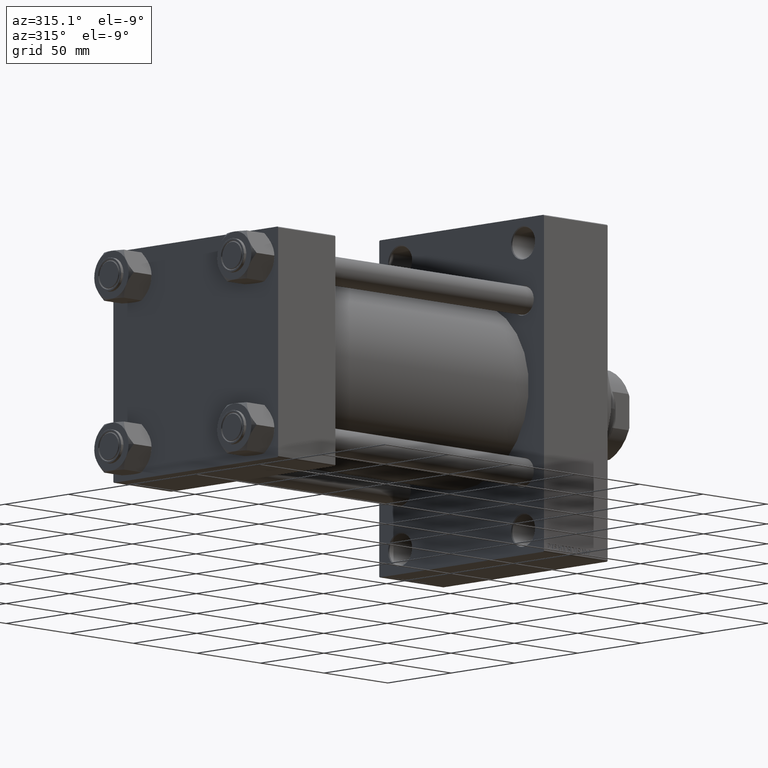
[diagram: clean part render]
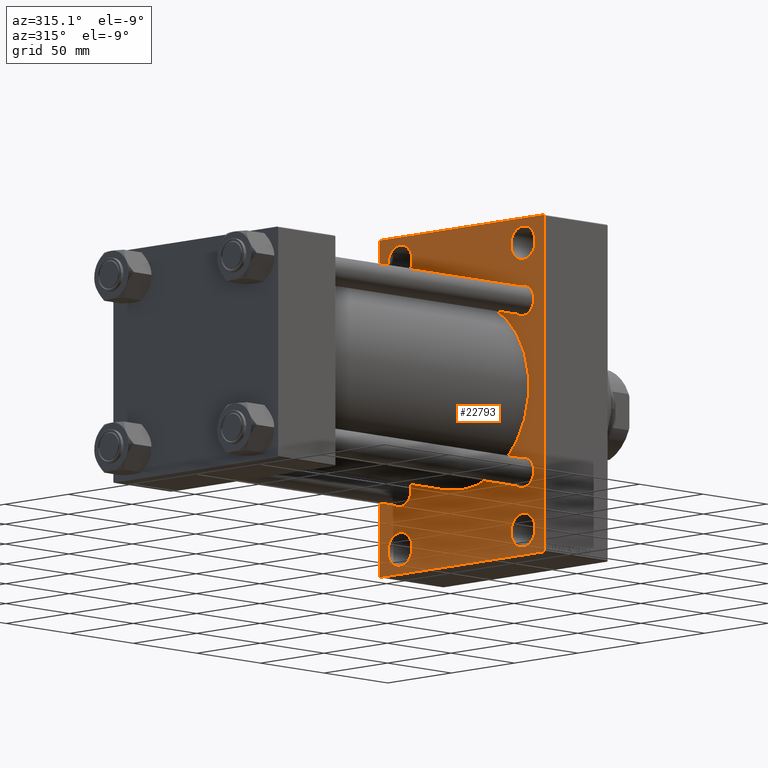
[diagram: same view with one face highlighted and labeled with its STEP entity id]
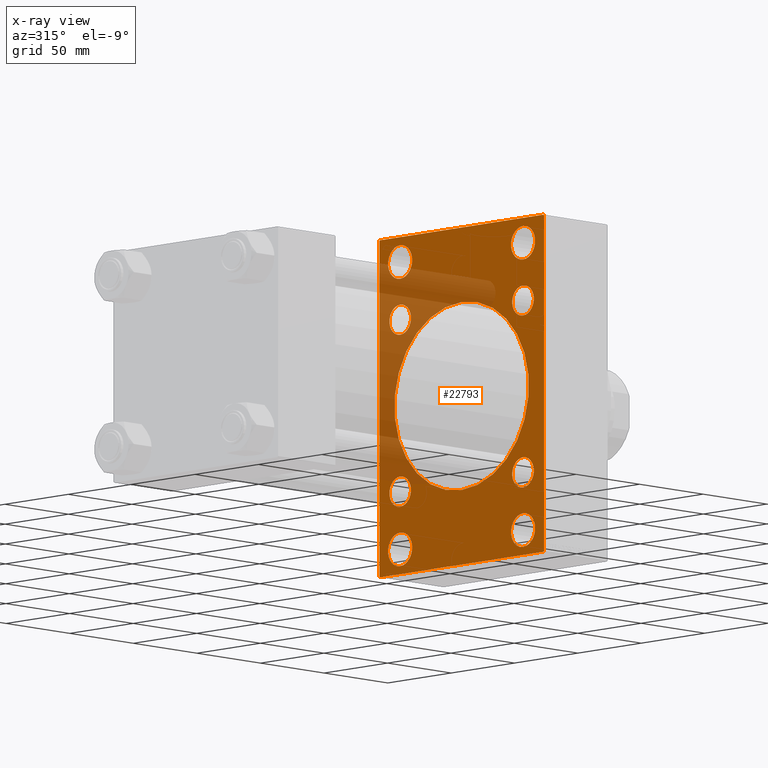
[diagram: x-ray of the same camera — body ghosted, the highlighted face saturated]
A machine part, auxiliary view. The second image highlights one B-rep face of the part: STEP entity #22793.
The next image is the same camera in x-ray: the body ghosted, the highlighted face saturated — about 25% of this face is hidden behind the body in this view.
In plain terms, the highlighted planar face has unit normal (-1, 0, 0).
Its self-contained STEP definition (entity closure, byte-faithful):
#115 = EDGE_CURVE ( 'NONE', #39630, #43888, #39712, .T. ) ;
#434 = AXIS2_PLACEMENT_3D ( 'NONE', #36726, #14760, #3663 ) ;
#561 = ORIENTED_EDGE ( 'NONE', *, *, #32945, .T. ) ;
#931 = CARTESIAN_POINT ( 'NONE',  ( 209.0000000000000284, -64.49999999999995737, -95.00000000000002842 ) ) ;
#1019 = CARTESIAN_POINT ( 'NONE',  ( 209.0000000000000284, 48.50000000000000711, 81.00000000000000000 ) ) ;
#1139 = EDGE_CURVE ( 'NONE', #39371, #47398, #39631, .T. ) ;
#1448 = ORIENTED_EDGE ( 'NONE', *, *, #38238, .T. ) ;
#1494 = DIRECTION ( 'NONE',  ( -0.000000000000000000, 0.7071067811865378028, 0.7071067811865573427 ) ) ;
#1671 = CARTESIAN_POINT ( 'NONE',  ( 209.0000000000000284, -48.44999999999999574, 56.95000000000003837 ) ) ;
#1690 = DIRECTION ( 'NONE',  ( 0.000000000000000000, 0.000000000000000000, 1.000000000000000000 ) ) ;
#1795 = VERTEX_POINT ( 'NONE', #28942 ) ;
#1901 = CARTESIAN_POINT ( 'NONE',  ( 209.0000000000000284, 48.45000000000000995, 56.95000000000002416 ) ) ;
#2238 = EDGE_CURVE ( 'NONE', #16831, #29782, #13147, .T. ) ;
#2805 = CARTESIAN_POINT ( 'NONE',  ( 209.0000000000000284, -64.50000000000002842, 94.99999999999997158 ) ) ;
#2992 = EDGE_CURVE ( 'NONE', #42486, #31927, #15037, .T. ) ;
#3102 = EDGE_LOOP ( 'NONE', ( #16718, #44909 ) ) ;
#3168 = VERTEX_POINT ( 'NONE', #6151 ) ;
#3248 = CARTESIAN_POINT ( 'NONE',  ( 209.0000000000000284, 64.99999999999997158, 94.99999999999997158 ) ) ;
#3273 = CARTESIAN_POINT ( 'NONE',  ( 209.0000000000000284, 48.45000000000000995, 48.45000000000001705 ) ) ;
#3405 = CIRCLE ( 'NONE', #30404, 9.499999999999980460 ) ;
#3406 = DIRECTION ( 'NONE',  ( 0.000000000000000000, 0.000000000000000000, 1.000000000000000000 ) ) ;
#3543 = CIRCLE ( 'NONE', #45198, 8.500000000000007105 ) ;
#3663 = DIRECTION ( 'NONE',  ( 0.000000000000000000, 0.000000000000000000, 1.000000000000000000 ) ) ;
#3935 = VERTEX_POINT ( 'NONE', #24044 ) ;
#4005 = ORIENTED_EDGE ( 'NONE', *, *, #47397, .T. ) ;
#4055 = EDGE_LOOP ( 'NONE', ( #9227, #18353 ) ) ;
#4217 = EDGE_CURVE ( 'NONE', #47398, #39371, #43610, .T. ) ;
#4234 = AXIS2_PLACEMENT_3D ( 'NONE', #41973, #12286, #27013 ) ;
#4263 = DIRECTION ( 'NONE',  ( 0.000000000000000000, 0.000000000000000000, 1.000000000000000000 ) ) ;
#4383 = LINE ( 'NONE', #18159, #5642 ) ;
#4521 = EDGE_CURVE ( 'NONE', #28708, #34101, #38173, .T. ) ;
#4971 = DIRECTION ( 'NONE',  ( 1.000000000000000000, -0.000000000000000000, 0.000000000000000000 ) ) ;
#5077 = DIRECTION ( 'NONE',  ( 1.000000000000000000, -0.000000000000000000, 0.000000000000000000 ) ) ;
#5116 = EDGE_LOOP ( 'NONE', ( #561, #8049 ) ) ;
#5297 = ORIENTED_EDGE ( 'NONE', *, *, #29708, .T. ) ;
#5642 = VECTOR ( 'NONE', #37451, 1000.000000000000114 ) ;
#5682 = CIRCLE ( 'NONE', #44252, 9.499999999999980460 ) ;
#5879 = EDGE_CURVE ( 'NONE', #11767, #34101, #13736, .T. ) ;
#5905 = DIRECTION ( 'NONE',  ( -0.000000000000000000, -0.7071067811865574537, -0.7071067811865376918 ) ) ;
#6151 = CARTESIAN_POINT ( 'NONE',  ( 209.0000000000000284, -48.50000000000000000, 90.49999999999998579 ) ) ;
#6466 = DIRECTION ( 'NONE',  ( 1.000000000000000000, 0.000000000000000000, 0.000000000000000000 ) ) ;
#7138 = ORIENTED_EDGE ( 'NONE', *, *, #46756, .T. ) ;
#7236 = ORIENTED_EDGE ( 'NONE', *, *, #29471, .T. ) ;
#7327 = AXIS2_PLACEMENT_3D ( 'NONE', #7465, #21730, #34392 ) ;
#7359 = CARTESIAN_POINT ( 'NONE',  ( 209.0000000000000284, 79.74999999999997158, 79.74999999999997158 ) ) ;
#7465 = CARTESIAN_POINT ( 'NONE',  ( 209.0000000000000284, 48.45000000000000995, -48.45000000000001705 ) ) ;
#7708 = DIRECTION ( 'NONE',  ( 0.000000000000000000, 0.000000000000000000, 1.000000000000000000 ) ) ;
#7769 = DIRECTION ( 'NONE',  ( 1.000000000000000000, -0.000000000000000000, 0.000000000000000000 ) ) ;
#8049 = ORIENTED_EDGE ( 'NONE', *, *, #32893, .T. ) ;
#8131 = DIRECTION ( 'NONE',  ( 0.000000000000000000, 0.000000000000000000, 1.000000000000000000 ) ) ;
#8277 = ORIENTED_EDGE ( 'NONE', *, *, #14753, .T. ) ;
#8572 = CARTESIAN_POINT ( 'NONE',  ( 209.0000000000000284, -48.49999999999999289, -81.00000000000001421 ) ) ;
#8768 = CARTESIAN_POINT ( 'NONE',  ( 209.0000000000000284, -48.44999999999999574, -48.45000000000003126 ) ) ;
#8967 = CARTESIAN_POINT ( 'NONE',  ( 209.0000000000000284, 48.45000000000000995, -39.95000000000000284 ) ) ;
#9219 = CARTESIAN_POINT ( 'NONE',  ( 209.0000000000000284, 64.49999999999997158, 94.99999999999997158 ) ) ;
#9227 = ORIENTED_EDGE ( 'NONE', *, *, #30990, .T. ) ;
#9273 = LINE ( 'NONE', #24019, #44678 ) ;
#9981 = FACE_BOUND ( 'NONE', #30776, .T. ) ;
#10482 = LINE ( 'NONE', #47184, #34997 ) ;
#10542 = VERTEX_POINT ( 'NONE', #37767 ) ;
#11180 = AXIS2_PLACEMENT_3D ( 'NONE', #8768, #32762, #37741 ) ;
#11507 = CARTESIAN_POINT ( 'NONE',  ( 209.0000000000000284, -48.50000000000000000, 71.50000000000002842 ) ) ;
#11767 = VERTEX_POINT ( 'NONE', #9219 ) ;
#12164 = EDGE_LOOP ( 'NONE', ( #25858, #35312 ) ) ;
#12286 = DIRECTION ( 'NONE',  ( 1.000000000000000000, 0.000000000000000000, 0.000000000000000000 ) ) ;
#12458 = CARTESIAN_POINT ( 'NONE',  ( 209.0000000000000284, 48.50000000000000711, -81.00000000000001421 ) ) ;
#12857 = CARTESIAN_POINT ( 'NONE',  ( 209.0000000000000284, -48.49999999999999289, -81.00000000000001421 ) ) ;
#12946 = CARTESIAN_POINT ( 'NONE',  ( 209.0000000000000284, -48.49999999999999289, -71.50000000000004263 ) ) ;
#13147 = LINE ( 'NONE', #38971, #15768 ) ;
#13324 = DIRECTION ( 'NONE',  ( 0.000000000000000000, 0.000000000000000000, 1.000000000000000000 ) ) ;
#13527 = EDGE_CURVE ( 'NONE', #29508, #3168, #14519, .T. ) ;
#13613 = FACE_BOUND ( 'NONE', #5116, .T. ) ;
#13736 = LINE ( 'NONE', #46826, #46729 ) ;
#13826 = CARTESIAN_POINT ( 'NONE',  ( 209.0000000000000284, 48.45000000000000995, 39.95000000000000284 ) ) ;
#14047 = EDGE_CURVE ( 'NONE', #11767, #47495, #25971, .T. ) ;
#14199 = AXIS2_PLACEMENT_3D ( 'NONE', #47630, #47156, #36743 ) ;
#14519 = CIRCLE ( 'NONE', #41506, 9.499999999999980460 ) ;
#14552 = FACE_BOUND ( 'NONE', #45912, .T. ) ;
#14714 = DIRECTION ( 'NONE',  ( 0.000000000000000000, 0.000000000000000000, 1.000000000000000000 ) ) ;
#14753 = EDGE_CURVE ( 'NONE', #30554, #41683, #34613, .T. ) ;
#14760 = DIRECTION ( 'NONE',  ( 1.000000000000000000, -0.000000000000000000, 0.000000000000000000 ) ) ;
#14774 = CARTESIAN_POINT ( 'NONE',  ( 209.0000000000000284, 48.45000000000000995, 48.45000000000001705 ) ) ;
#14967 = EDGE_CURVE ( 'NONE', #28708, #22962, #9273, .T. ) ;
#15037 = CIRCLE ( 'NONE', #42778, 9.499999999999980460 ) ;
#15768 = VECTOR ( 'NONE', #5905, 999.9999999999998863 ) ;
#16240 = CARTESIAN_POINT ( 'NONE',  ( 209.0000000000000284, 64.99999999999997158, 94.49999999999997158 ) ) ;
#16718 = ORIENTED_EDGE ( 'NONE', *, *, #115, .T. ) ;
#16831 = VERTEX_POINT ( 'NONE', #44879 ) ;
#16897 = VECTOR ( 'NONE', #37760, 1000.000000000000114 ) ;
#17181 = DIRECTION ( 'NONE',  ( 1.000000000000000000, -0.000000000000000000, 0.000000000000000000 ) ) ;
#17284 = AXIS2_PLACEMENT_3D ( 'NONE', #44104, #44355, #8131 ) ;
#18119 = CIRCLE ( 'NONE', #31223, 8.500000000000007105 ) ;
#18159 = CARTESIAN_POINT ( 'NONE',  ( 209.0000000000000284, -79.74999999999998579, -79.74999999999998579 ) ) ;
#18353 = ORIENTED_EDGE ( 'NONE', *, *, #13527, .T. ) ;
#19400 = AXIS2_PLACEMENT_3D ( 'NONE', #12857, #17181, #13324 ) ;
#19653 = CARTESIAN_POINT ( 'NONE',  ( 209.0000000000000284, 48.50000000000000711, -90.50000000000000000 ) ) ;
#20206 = AXIS2_PLACEMENT_3D ( 'NONE', #28734, #32829, #14714 ) ;
#20730 = DIRECTION ( 'NONE',  ( 0.000000000000000000, 0.000000000000000000, -1.000000000000000000 ) ) ;
#21030 = CARTESIAN_POINT ( 'NONE',  ( 209.0000000000000284, 48.50000000000000711, 71.50000000000002842 ) ) ;
#21268 = CARTESIAN_POINT ( 'NONE',  ( 209.0000000000000284, 48.45000000000000995, -48.45000000000001705 ) ) ;
#21346 = FACE_BOUND ( 'NONE', #36072, .T. ) ;
#21730 = DIRECTION ( 'NONE',  ( 1.000000000000000000, -0.000000000000000000, 0.000000000000000000 ) ) ;
#21957 = EDGE_CURVE ( 'NONE', #33628, #3935, #28577, .T. ) ;
#22008 = DIRECTION ( 'NONE',  ( 1.000000000000000000, -0.000000000000000000, 0.000000000000000000 ) ) ;
#22051 = CARTESIAN_POINT ( 'NONE',  ( 209.0000000000000284, 0.000000000000000000, 0.000000000000000000 ) ) ;
#22793 = ADVANCED_FACE ( 'NONE', ( #40130, #21346, #43296, #9981, #14552, #46933, #43769, #43061, #13613, #29277 ), #36043, .T. ) ;
#22962 = VERTEX_POINT ( 'NONE', #42697 ) ;
#23096 = VERTEX_POINT ( 'NONE', #41455 ) ;
#23199 = ORIENTED_EDGE ( 'NONE', *, *, #4217, .T. ) ;
#23913 = CARTESIAN_POINT ( 'NONE',  ( 209.0000000000000284, -48.44999999999999574, -48.45000000000003126 ) ) ;
#24019 = CARTESIAN_POINT ( 'NONE',  ( 209.0000000000000284, -65.00000000000001421, 94.99999999999997158 ) ) ;
#24044 = CARTESIAN_POINT ( 'NONE',  ( 209.0000000000000284, 48.50000000000000711, 90.49999999999998579 ) ) ;
#24383 = EDGE_CURVE ( 'NONE', #31927, #42486, #40203, .T. ) ;
#24745 = EDGE_CURVE ( 'NONE', #43888, #39630, #44851, .T. ) ;
#24967 = VERTEX_POINT ( 'NONE', #931 ) ;
#24998 = DIRECTION ( 'NONE',  ( 0.000000000000000000, 7.304098846218135653E-17, -1.000000000000000000 ) ) ;
#25858 = ORIENTED_EDGE ( 'NONE', *, *, #32789, .T. ) ;
#25971 = LINE ( 'NONE', #7359, #16897 ) ;
#27013 = DIRECTION ( 'NONE',  ( 0.000000000000000000, 0.000000000000000000, -1.000000000000000000 ) ) ;
#27297 = CIRCLE ( 'NONE', #14199, 9.499999999999980460 ) ;
#28078 = AXIS2_PLACEMENT_3D ( 'NONE', #40326, #22008, #3406 ) ;
#28161 = CIRCLE ( 'NONE', #4234, 53.00000000000000711 ) ;
#28464 = DIRECTION ( 'NONE',  ( 0.000000000000000000, -1.000000000000000000, 0.000000000000000000 ) ) ;
#28504 = CARTESIAN_POINT ( 'NONE',  ( 209.0000000000000284, -2.602085213965210642E-15, 53.00000000000000711 ) ) ;
#28577 = CIRCLE ( 'NONE', #20206, 9.499999999999980460 ) ;
#28708 = VERTEX_POINT ( 'NONE', #37856 ) ;
#28734 = CARTESIAN_POINT ( 'NONE',  ( 209.0000000000000284, 48.50000000000000711, 81.00000000000000000 ) ) ;
#28754 = EDGE_LOOP ( 'NONE', ( #4005, #31380, #41834, #40144, #41355, #47140, #5297, #37778 ) ) ;
#28942 = CARTESIAN_POINT ( 'NONE',  ( 209.0000000000000284, 48.45000000000000995, -56.95000000000002416 ) ) ;
#29048 = DIRECTION ( 'NONE',  ( -1.000000000000000000, 0.000000000000000000, -0.000000000000000000 ) ) ;
#29116 = DIRECTION ( 'NONE',  ( 0.000000000000000000, 0.000000000000000000, 1.000000000000000000 ) ) ;
#29277 = FACE_OUTER_BOUND ( 'NONE', #28754, .T. ) ;
#29471 = EDGE_CURVE ( 'NONE', #33105, #10542, #5682, .T. ) ;
#29508 = VERTEX_POINT ( 'NONE', #11507 ) ;
#29708 = EDGE_CURVE ( 'NONE', #47495, #16831, #44285, .T. ) ;
#29782 = VERTEX_POINT ( 'NONE', #30525 ) ;
#30172 = DIRECTION ( 'NONE',  ( 1.000000000000000000, -0.000000000000000000, 0.000000000000000000 ) ) ;
#30198 = AXIS2_PLACEMENT_3D ( 'NONE', #23913, #5077, #1690 ) ;
#30226 = DIRECTION ( 'NONE',  ( 0.000000000000000000, 0.000000000000000000, 1.000000000000000000 ) ) ;
#30404 = AXIS2_PLACEMENT_3D ( 'NONE', #1019, #7769, #37460 ) ;
#30525 = CARTESIAN_POINT ( 'NONE',  ( 209.0000000000000284, 64.50000000000004263, -95.00000000000001421 ) ) ;
#30554 = VERTEX_POINT ( 'NONE', #1901 ) ;
#30776 = EDGE_LOOP ( 'NONE', ( #41605, #36995 ) ) ;
#30990 = EDGE_CURVE ( 'NONE', #3168, #29508, #27297, .T. ) ;
#31066 = EDGE_CURVE ( 'NONE', #3935, #33628, #3405, .T. ) ;
#31223 = AXIS2_PLACEMENT_3D ( 'NONE', #21268, #39111, #31872 ) ;
#31380 = ORIENTED_EDGE ( 'NONE', *, *, #41699, .T. ) ;
#31647 = ORIENTED_EDGE ( 'NONE', *, *, #2992, .T. ) ;
#31653 = CARTESIAN_POINT ( 'NONE',  ( 209.0000000000000284, -79.75000000000089528, 79.74999999999867839 ) ) ;
#31726 = DIRECTION ( 'NONE',  ( 0.000000000000000000, 0.000000000000000000, -1.000000000000000000 ) ) ;
#31872 = DIRECTION ( 'NONE',  ( 0.000000000000000000, 0.000000000000000000, 1.000000000000000000 ) ) ;
#31927 = VERTEX_POINT ( 'NONE', #33350 ) ;
#32448 = DIRECTION ( 'NONE',  ( 0.000000000000000000, -1.000000000000000000, -1.067522139062650425E-16 ) ) ;
#32500 = ORIENTED_EDGE ( 'NONE', *, *, #24383, .T. ) ;
#32597 = EDGE_CURVE ( 'NONE', #1795, #36992, #18119, .T. ) ;
#32605 = ORIENTED_EDGE ( 'NONE', *, *, #1139, .T. ) ;
#32661 = DIRECTION ( 'NONE',  ( -0.000000000000000000, 0.000000000000000000, 1.000000000000000000 ) ) ;
#32762 = DIRECTION ( 'NONE',  ( 1.000000000000000000, -0.000000000000000000, 0.000000000000000000 ) ) ;
#32789 = EDGE_CURVE ( 'NONE', #36992, #1795, #41250, .T. ) ;
#32829 = DIRECTION ( 'NONE',  ( 1.000000000000000000, -0.000000000000000000, 0.000000000000000000 ) ) ;
#32893 = EDGE_CURVE ( 'NONE', #23096, #43150, #28161, .T. ) ;
#32945 = EDGE_CURVE ( 'NONE', #43150, #23096, #45882, .T. ) ;
#33105 = VERTEX_POINT ( 'NONE', #19653 ) ;
#33350 = CARTESIAN_POINT ( 'NONE',  ( 209.0000000000000284, -48.49999999999999289, -90.50000000000000000 ) ) ;
#33618 = CARTESIAN_POINT ( 'NONE',  ( 209.0000000000000284, -48.44999999999999574, -56.95000000000003837 ) ) ;
#33628 = VERTEX_POINT ( 'NONE', #21030 ) ;
#34101 = VERTEX_POINT ( 'NONE', #2805 ) ;
#34392 = DIRECTION ( 'NONE',  ( 0.000000000000000000, 0.000000000000000000, 1.000000000000000000 ) ) ;
#34613 = CIRCLE ( 'NONE', #43090, 8.500000000000007105 ) ;
#34997 = VECTOR ( 'NONE', #32448, 1000.000000000000000 ) ;
#35312 = ORIENTED_EDGE ( 'NONE', *, *, #32597, .T. ) ;
#35593 = CARTESIAN_POINT ( 'NONE',  ( 209.0000000000000284, -48.44999999999999574, 39.95000000000001705 ) ) ;
#35990 = EDGE_LOOP ( 'NONE', ( #7138, #7236 ) ) ;
#36043 = PLANE ( 'NONE',  #38693 ) ;
#36072 = EDGE_LOOP ( 'NONE', ( #31647, #32500 ) ) ;
#36726 = CARTESIAN_POINT ( 'NONE',  ( 209.0000000000000284, -48.44999999999999574, 48.45000000000003126 ) ) ;
#36743 = DIRECTION ( 'NONE',  ( 0.000000000000000000, 0.000000000000000000, 1.000000000000000000 ) ) ;
#36992 = VERTEX_POINT ( 'NONE', #8967 ) ;
#36995 = ORIENTED_EDGE ( 'NONE', *, *, #21957, .T. ) ;
#37300 = DIRECTION ( 'NONE',  ( 1.000000000000000000, -0.000000000000000000, 0.000000000000000000 ) ) ;
#37451 = DIRECTION ( 'NONE',  ( 0.000000000000000000, -0.7071067811865474617, 0.7071067811865474617 ) ) ;
#37460 = DIRECTION ( 'NONE',  ( 0.000000000000000000, 0.000000000000000000, 1.000000000000000000 ) ) ;
#37741 = DIRECTION ( 'NONE',  ( 0.000000000000000000, 0.000000000000000000, 1.000000000000000000 ) ) ;
#37760 = DIRECTION ( 'NONE',  ( 0.000000000000000000, 0.7071067811865474617, -0.7071067811865474617 ) ) ;
#37767 = CARTESIAN_POINT ( 'NONE',  ( 209.0000000000000284, 48.50000000000000711, -71.50000000000004263 ) ) ;
#37778 = ORIENTED_EDGE ( 'NONE', *, *, #2238, .T. ) ;
#37856 = CARTESIAN_POINT ( 'NONE',  ( 209.0000000000000284, -65.00000000000001421, 94.49999999999997158 ) ) ;
#38173 = LINE ( 'NONE', #31653, #47478 ) ;
#38238 = EDGE_CURVE ( 'NONE', #41683, #30554, #3543, .T. ) ;
#38693 = AXIS2_PLACEMENT_3D ( 'NONE', #22051, #29048, #32661 ) ;
#38971 = CARTESIAN_POINT ( 'NONE',  ( 209.0000000000000284, 79.74999999999913314, -79.75000000000135003 ) ) ;
#39111 = DIRECTION ( 'NONE',  ( 1.000000000000000000, -0.000000000000000000, 0.000000000000000000 ) ) ;
#39371 = VERTEX_POINT ( 'NONE', #1671 ) ;
#39532 = CARTESIAN_POINT ( 'NONE',  ( 209.0000000000000284, -2.602085213965210642E-15, 0.000000000000000000 ) ) ;
#39630 = VERTEX_POINT ( 'NONE', #44606 ) ;
#39631 = CIRCLE ( 'NONE', #17284, 8.500000000000007105 ) ;
#39712 = CIRCLE ( 'NONE', #11180, 8.500000000000007105 ) ;
#39807 = EDGE_LOOP ( 'NONE', ( #8277, #1448 ) ) ;
#40130 = FACE_BOUND ( 'NONE', #4055, .T. ) ;
#40144 = ORIENTED_EDGE ( 'NONE', *, *, #4521, .T. ) ;
#40203 = CIRCLE ( 'NONE', #19400, 9.499999999999980460 ) ;
#40326 = CARTESIAN_POINT ( 'NONE',  ( 209.0000000000000284, 48.50000000000000711, -81.00000000000001421 ) ) ;
#40479 = AXIS2_PLACEMENT_3D ( 'NONE', #39532, #6466, #20730 ) ;
#40786 = CARTESIAN_POINT ( 'NONE',  ( 209.0000000000000284, -48.50000000000000000, 81.00000000000000000 ) ) ;
#40839 = DIRECTION ( 'NONE',  ( 1.000000000000000000, -0.000000000000000000, 0.000000000000000000 ) ) ;
#41250 = CIRCLE ( 'NONE', #7327, 8.500000000000007105 ) ;
#41355 = ORIENTED_EDGE ( 'NONE', *, *, #5879, .F. ) ;
#41455 = CARTESIAN_POINT ( 'NONE',  ( 209.0000000000000284, 3.888542821515762466E-15, -53.00000000000000711 ) ) ;
#41506 = AXIS2_PLACEMENT_3D ( 'NONE', #40786, #30172, #7708 ) ;
#41605 = ORIENTED_EDGE ( 'NONE', *, *, #31066, .T. ) ;
#41683 = VERTEX_POINT ( 'NONE', #13826 ) ;
#41699 = EDGE_CURVE ( 'NONE', #24967, #22962, #4383, .T. ) ;
#41834 = ORIENTED_EDGE ( 'NONE', *, *, #14967, .F. ) ;
#41973 = CARTESIAN_POINT ( 'NONE',  ( 209.0000000000000284, -2.602085213965210642E-15, 0.000000000000000000 ) ) ;
#42486 = VERTEX_POINT ( 'NONE', #12946 ) ;
#42697 = CARTESIAN_POINT ( 'NONE',  ( 209.0000000000000284, -65.00000000000001421, -94.49999999999997158 ) ) ;
#42778 = AXIS2_PLACEMENT_3D ( 'NONE', #8572, #37300, #45531 ) ;
#43061 = FACE_BOUND ( 'NONE', #3102, .T. ) ;
#43090 = AXIS2_PLACEMENT_3D ( 'NONE', #3273, #43361, #29116 ) ;
#43150 = VERTEX_POINT ( 'NONE', #28504 ) ;
#43296 = FACE_BOUND ( 'NONE', #35990, .T. ) ;
#43361 = DIRECTION ( 'NONE',  ( 1.000000000000000000, -0.000000000000000000, 0.000000000000000000 ) ) ;
#43610 = CIRCLE ( 'NONE', #434, 8.500000000000007105 ) ;
#43769 = FACE_BOUND ( 'NONE', #12164, .T. ) ;
#43888 = VERTEX_POINT ( 'NONE', #33618 ) ;
#44104 = CARTESIAN_POINT ( 'NONE',  ( 209.0000000000000284, -48.44999999999999574, 48.45000000000003126 ) ) ;
#44252 = AXIS2_PLACEMENT_3D ( 'NONE', #12458, #4971, #4263 ) ;
#44285 = LINE ( 'NONE', #3248, #45028 ) ;
#44355 = DIRECTION ( 'NONE',  ( 1.000000000000000000, -0.000000000000000000, 0.000000000000000000 ) ) ;
#44606 = CARTESIAN_POINT ( 'NONE',  ( 209.0000000000000284, -48.44999999999999574, -39.95000000000001705 ) ) ;
#44678 = VECTOR ( 'NONE', #31726, 1000.000000000000000 ) ;
#44851 = CIRCLE ( 'NONE', #30198, 8.500000000000007105 ) ;
#44879 = CARTESIAN_POINT ( 'NONE',  ( 209.0000000000000284, 64.99999999999998579, -94.50000000000008527 ) ) ;
#44909 = ORIENTED_EDGE ( 'NONE', *, *, #24745, .T. ) ;
#45028 = VECTOR ( 'NONE', #24998, 1000.000000000000000 ) ;
#45198 = AXIS2_PLACEMENT_3D ( 'NONE', #14774, #40839, #30226 ) ;
#45531 = DIRECTION ( 'NONE',  ( 0.000000000000000000, 0.000000000000000000, 1.000000000000000000 ) ) ;
#45882 = CIRCLE ( 'NONE', #40479, 53.00000000000000711 ) ;
#45912 = EDGE_LOOP ( 'NONE', ( #32605, #23199 ) ) ;
#46594 = CIRCLE ( 'NONE', #28078, 9.499999999999980460 ) ;
#46729 = VECTOR ( 'NONE', #28464, 1000.000000000000000 ) ;
#46756 = EDGE_CURVE ( 'NONE', #10542, #33105, #46594, .T. ) ;
#46826 = CARTESIAN_POINT ( 'NONE',  ( 209.0000000000000284, 64.99999999999997158, 94.99999999999997158 ) ) ;
#46933 = FACE_BOUND ( 'NONE', #39807, .T. ) ;
#47140 = ORIENTED_EDGE ( 'NONE', *, *, #14047, .T. ) ;
#47156 = DIRECTION ( 'NONE',  ( 1.000000000000000000, -0.000000000000000000, 0.000000000000000000 ) ) ;
#47184 = CARTESIAN_POINT ( 'NONE',  ( 209.0000000000000284, 64.99999999999998579, -95.00000000000001421 ) ) ;
#47397 = EDGE_CURVE ( 'NONE', #29782, #24967, #10482, .T. ) ;
#47398 = VERTEX_POINT ( 'NONE', #35593 ) ;
#47478 = VECTOR ( 'NONE', #1494, 1000.000000000000000 ) ;
#47495 = VERTEX_POINT ( 'NONE', #16240 ) ;
#47630 = CARTESIAN_POINT ( 'NONE',  ( 209.0000000000000284, -48.50000000000000000, 81.00000000000000000 ) ) ;